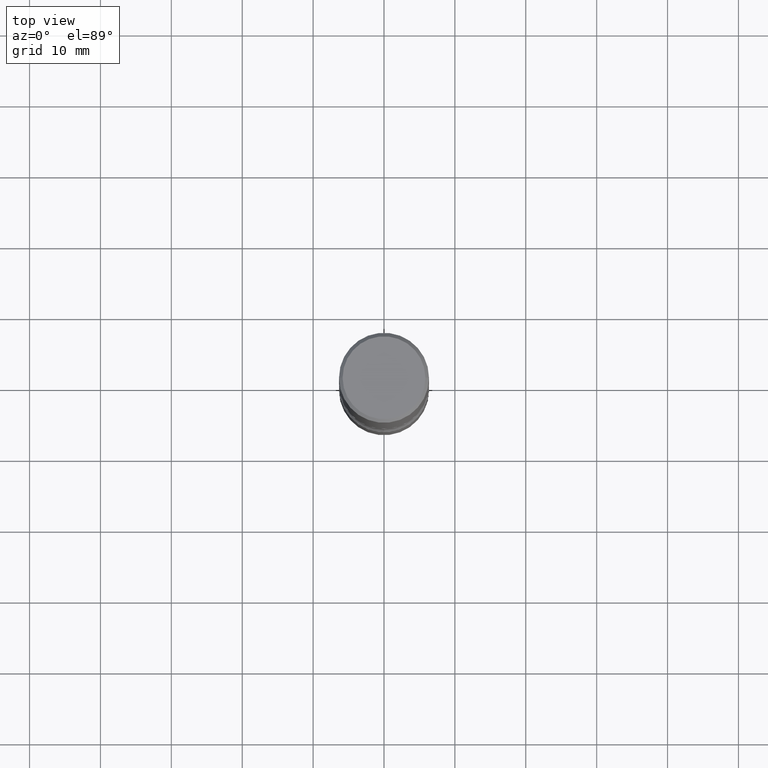
[diagram: clean part render]
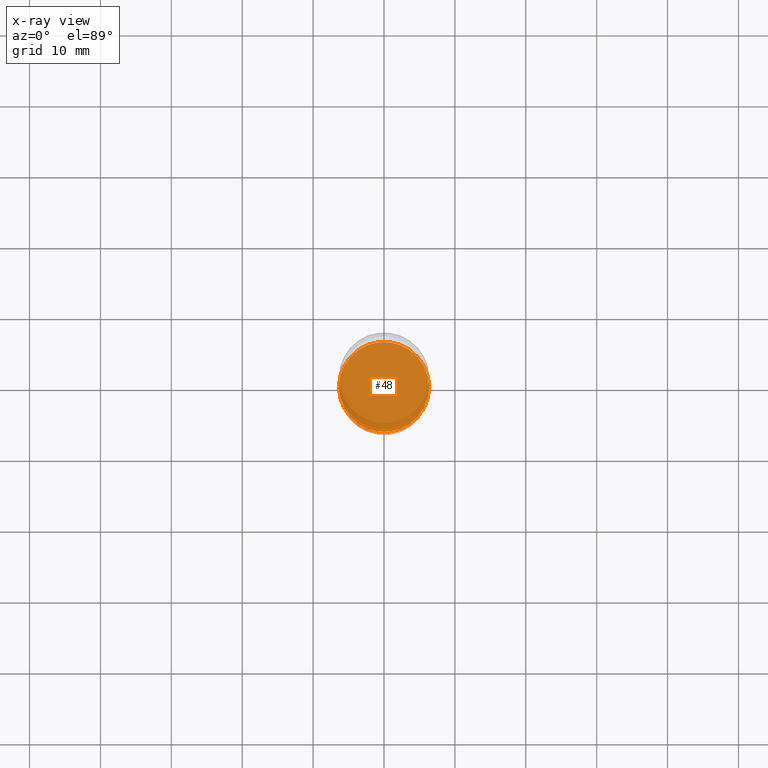
[diagram: x-ray — body ghosted, one internal face saturated and labeled with its STEP entity id]
A machine part, top view, then the same camera in x-ray: the body is ghosted and one INTERNAL B-rep face — a face not visible from any outside direction — is saturated and labeled: STEP entity #48.
In plain terms, the highlighted planar face has unit normal (0, -0, -1).
Its self-contained STEP definition (entity closure, byte-faithful):
#9 = AXIS2_PLACEMENT_3D ( 'NONE', #35, #360, #548 ) ;
#35 = CARTESIAN_POINT ( 'NONE',  ( 7.336406418555409790E-29, -1.047444401652943635E-14, -3.000000000000000444 ) ) ;
#48 = ADVANCED_FACE ( 'NONE', ( #488 ), #316, .F. ) ;
#66 = CARTESIAN_POINT ( 'NONE',  ( 7.336406418555409790E-29, -1.047444401652943635E-14, -3.000000000000000444 ) ) ;
#84 = AXIS2_PLACEMENT_3D ( 'NONE', #66, #369, #363 ) ;
#88 = AXIS2_PLACEMENT_3D ( 'NONE', #153, #321, #123 ) ;
#100 = EDGE_CURVE ( 'NONE', #477, #385, #483, .T. ) ;
#108 = CARTESIAN_POINT ( 'NONE',  ( 0.2500000000000002776, -1.222018468595100619E-14, -3.000000000000000444 ) ) ;
#123 = DIRECTION ( 'NONE',  ( 1.000000000000000000, -6.982962677686270655E-15, 0.000000000000000000 ) ) ;
#138 = EDGE_CURVE ( 'NONE', #385, #477, #323, .T. ) ;
#153 = CARTESIAN_POINT ( 'NONE',  ( 7.336406418555409790E-29, -1.047444401652943635E-14, -3.000000000000000444 ) ) ;
#176 = ORIENTED_EDGE ( 'NONE', *, *, #100, .T. ) ;
#232 = CARTESIAN_POINT ( 'NONE',  ( -0.2500000000000002776, -1.039145562646811219E-14, -3.000000000000000444 ) ) ;
#316 = PLANE ( 'NONE',  #84 ) ;
#321 = DIRECTION ( 'NONE',  ( -2.445468806185136597E-29, 3.491481338843145583E-15, 1.000000000000000000 ) ) ;
#323 = CIRCLE ( 'NONE', #88, 0.2500000000000002776 ) ;
#353 = ORIENTED_EDGE ( 'NONE', *, *, #138, .T. ) ;
#360 = DIRECTION ( 'NONE',  ( -2.445468806185136597E-29, 3.491481338843145583E-15, 1.000000000000000000 ) ) ;
#363 = DIRECTION ( 'NONE',  ( -1.000000000000000000, 6.982962677686265922E-15, -4.876176775795935793E-29 ) ) ;
#369 = DIRECTION ( 'NONE',  ( 2.438088387897960049E-29, -3.491481338843145188E-15, -1.000000000000000000 ) ) ;
#385 = VERTEX_POINT ( 'NONE', #108 ) ;
#435 = EDGE_LOOP ( 'NONE', ( #353, #176 ) ) ;
#477 = VERTEX_POINT ( 'NONE', #232 ) ;
#483 = CIRCLE ( 'NONE', #9, 0.2500000000000002776 ) ;
#488 = FACE_OUTER_BOUND ( 'NONE', #435, .T. ) ;
#548 = DIRECTION ( 'NONE',  ( 1.000000000000000000, -6.982962677686270655E-15, 0.000000000000000000 ) ) ;